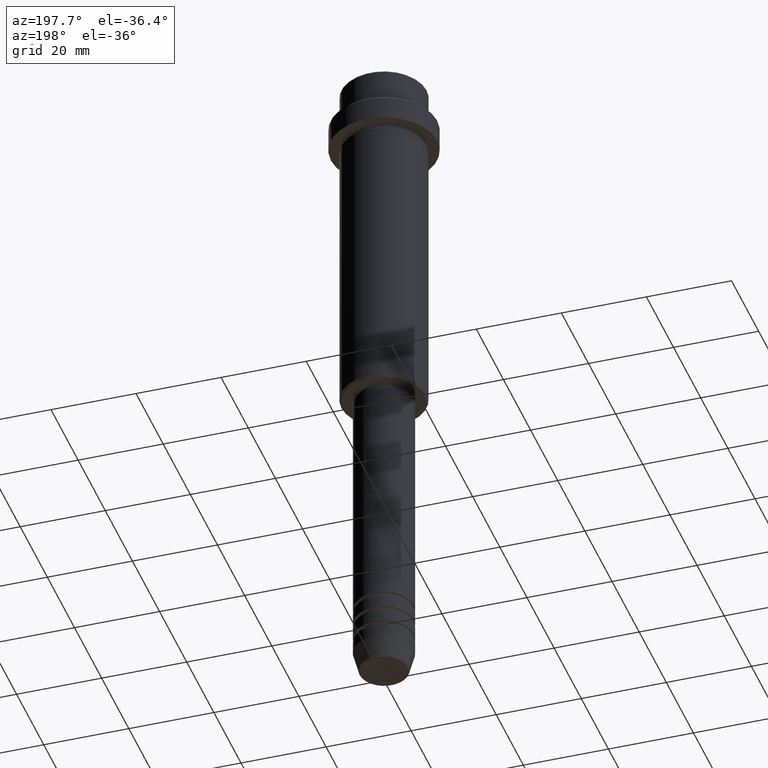
[diagram: clean part render]
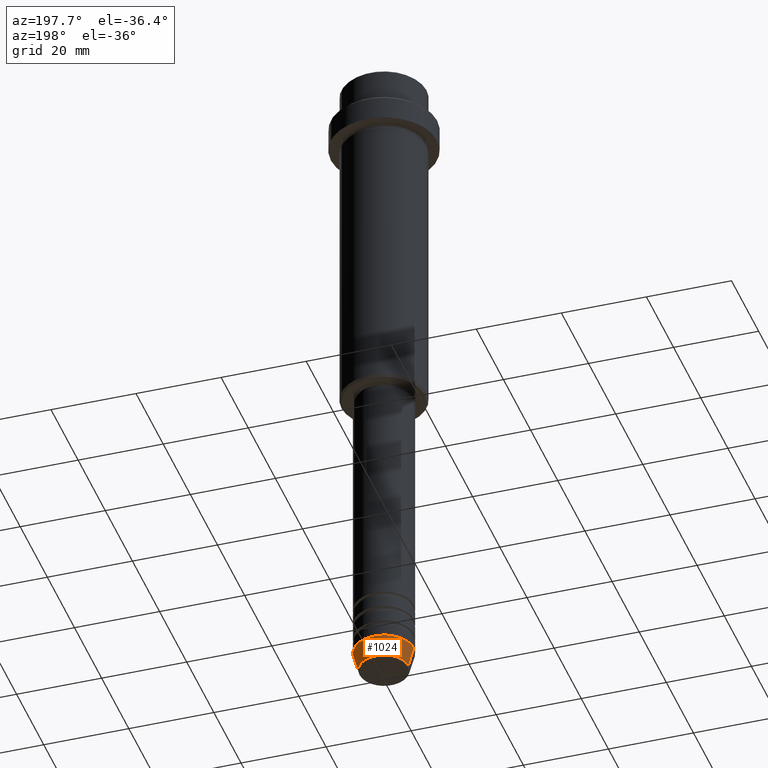
[diagram: same view with one face highlighted and labeled with its STEP entity id]
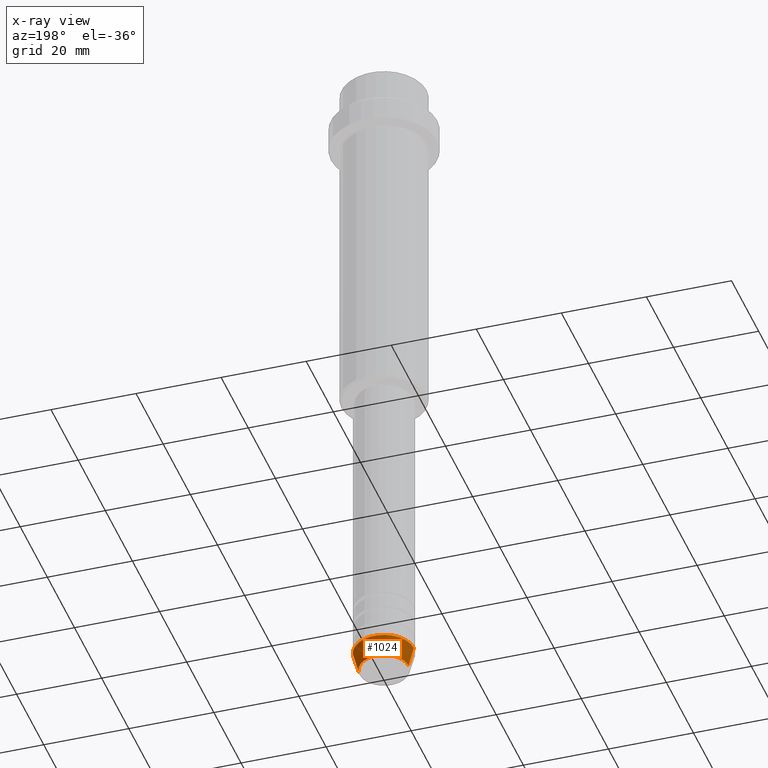
[diagram: x-ray of the same camera — body ghosted, the highlighted face saturated]
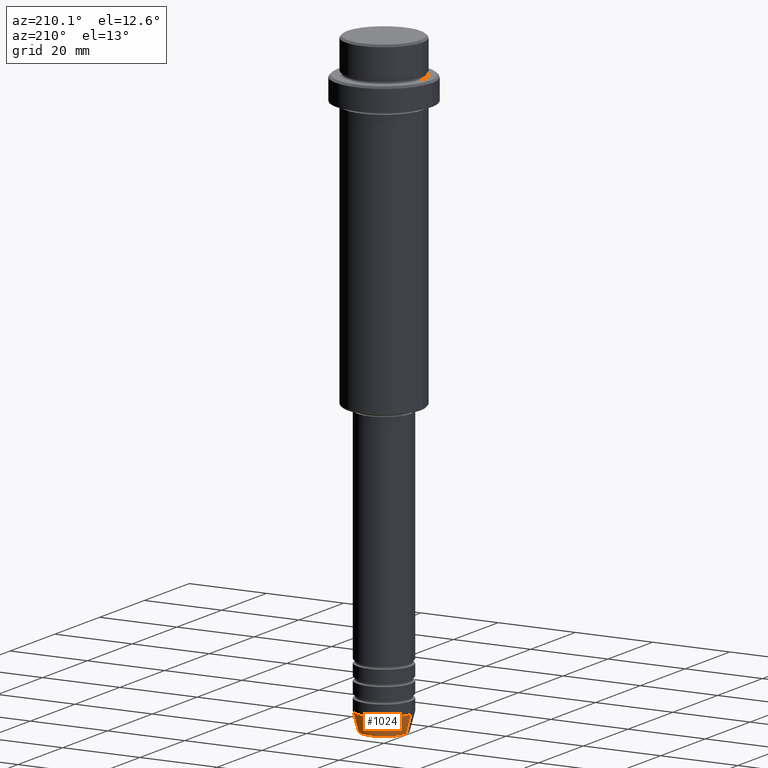
[diagram: same view with one face highlighted and labeled with its STEP entity id]
A machine part, auxiliary view. The second image highlights one B-rep face of the part: STEP entity #1024.
The next image is the same camera in x-ray: the body ghosted, the highlighted face saturated — about 0% of this face is hidden behind the body in this view.
A second angle (auxiliary view) of the same face is appended — the face is thin or edge-on in the first view.
In plain terms, the highlighted conical surface has half-angle 15 deg.
Its self-contained STEP definition (entity closure, byte-faithful):
#17 = CARTESIAN_POINT ( 'NONE',  ( -7.000000000000000000, 8.572527594031473190E-16, -154.9999999999999716 ) ) ;
#31 = CARTESIAN_POINT ( 'NONE',  ( -5.759553456999435994, 7.812973149831951773E-16, -159.6294095225512137 ) ) ;
#43 = ORIENTED_EDGE ( 'NONE', *, *, #183, .F. ) ;
#49 = DIRECTION ( 'NONE',  ( -0.000000000000000000, -0.000000000000000000, 1.000000000000000000 ) ) ;
#66 = DIRECTION ( 'NONE',  ( 1.000000000000000000, 0.000000000000000000, 0.000000000000000000 ) ) ;
#88 = DIRECTION ( 'NONE',  ( -0.000000000000000000, -0.000000000000000000, 1.000000000000000000 ) ) ;
#167 = LINE ( 'NONE', #1033, #1208 ) ;
#183 = EDGE_CURVE ( 'NONE', #926, #326, #1237, .T. ) ;
#228 = EDGE_CURVE ( 'NONE', #326, #991, #828, .T. ) ;
#262 = DIRECTION ( 'NONE',  ( -0.2588190451025213501, 3.169619151431772337E-17, 0.9659258262890680902 ) ) ;
#326 = VERTEX_POINT ( 'NONE', #755 ) ;
#351 = EDGE_CURVE ( 'NONE', #926, #1323, #660, .T. ) ;
#406 = VECTOR ( 'NONE', #757, 1000.000000000000000 ) ;
#514 = ORIENTED_EDGE ( 'NONE', *, *, #351, .T. ) ;
#524 = ORIENTED_EDGE ( 'NONE', *, *, #228, .F. ) ;
#533 = CARTESIAN_POINT ( 'NONE',  ( 0.000000000000000000, 0.000000000000000000, -154.9999999999999716 ) ) ;
#587 = CARTESIAN_POINT ( 'NONE',  ( 5.759553456999435994, 0.000000000000000000, -159.6294095225512137 ) ) ;
#660 = CIRCLE ( 'NONE', #741, 5.759553456999435994 ) ;
#717 = FACE_OUTER_BOUND ( 'NONE', #1187, .T. ) ;
#741 = AXIS2_PLACEMENT_3D ( 'NONE', #1394, #853, #864 ) ;
#755 = CARTESIAN_POINT ( 'NONE',  ( 7.000000000000000000, 0.000000000000000000, -154.9999999999999716 ) ) ;
#757 = DIRECTION ( 'NONE',  ( 0.2588190451025213501, 0.000000000000000000, 0.9659258262890680902 ) ) ;
#779 = ORIENTED_EDGE ( 'NONE', *, *, #1396, .T. ) ;
#828 = CIRCLE ( 'NONE', #948, 7.000000000000000000 ) ;
#853 = DIRECTION ( 'NONE',  ( -0.000000000000000000, -0.000000000000000000, 1.000000000000000000 ) ) ;
#864 = DIRECTION ( 'NONE',  ( 1.000000000000000000, 0.000000000000000000, 0.000000000000000000 ) ) ;
#922 = DIRECTION ( 'NONE',  ( 1.000000000000000000, 0.000000000000000000, 0.000000000000000000 ) ) ;
#926 = VERTEX_POINT ( 'NONE', #587 ) ;
#948 = AXIS2_PLACEMENT_3D ( 'NONE', #1025, #49, #922 ) ;
#991 = VERTEX_POINT ( 'NONE', #17 ) ;
#1024 = ADVANCED_FACE ( 'NONE', ( #717 ), #1159, .T. ) ;
#1025 = CARTESIAN_POINT ( 'NONE',  ( 0.000000000000000000, 0.000000000000000000, -154.9999999999999716 ) ) ;
#1033 = CARTESIAN_POINT ( 'NONE',  ( -7.000000000000000000, 8.572527594031473190E-16, -154.9999999999999716 ) ) ;
#1118 = AXIS2_PLACEMENT_3D ( 'NONE', #533, #88, #66 ) ;
#1159 = CONICAL_SURFACE ( 'NONE', #1118, 7.000000000000000000, 0.2617993877991500740 ) ;
#1187 = EDGE_LOOP ( 'NONE', ( #514, #779, #524, #43 ) ) ;
#1208 = VECTOR ( 'NONE', #262, 1000.000000000000000 ) ;
#1227 = CARTESIAN_POINT ( 'NONE',  ( 7.000000000000000000, 0.000000000000000000, -154.9999999999999716 ) ) ;
#1237 = LINE ( 'NONE', #1227, #406 ) ;
#1323 = VERTEX_POINT ( 'NONE', #31 ) ;
#1394 = CARTESIAN_POINT ( 'NONE',  ( 0.000000000000000000, 0.000000000000000000, -159.6294095225512137 ) ) ;
#1396 = EDGE_CURVE ( 'NONE', #1323, #991, #167, .T. ) ;